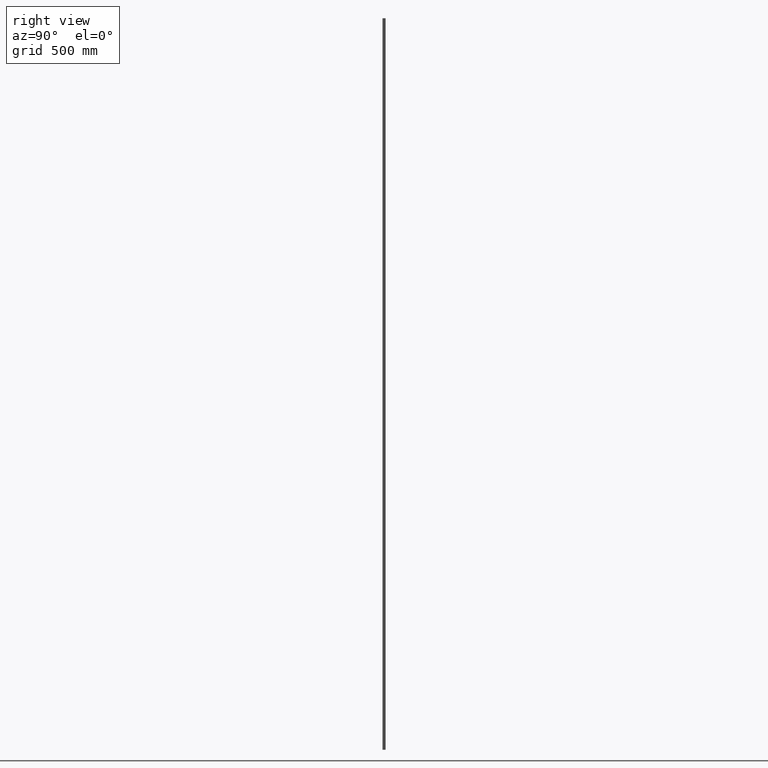
[diagram: clean part render]
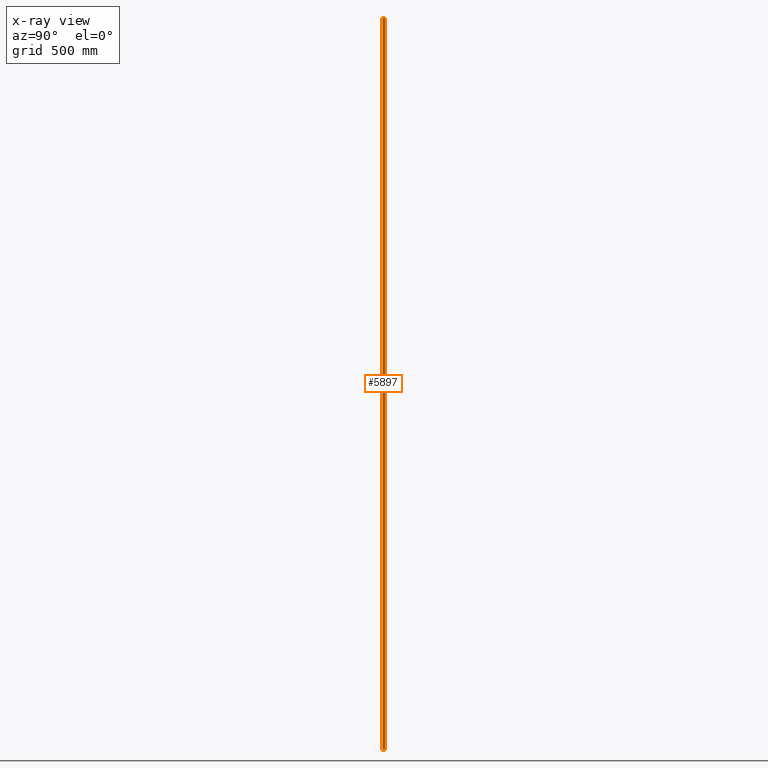
[diagram: x-ray — body ghosted, one internal face saturated and labeled with its STEP entity id]
A machine part, right view, then the same camera in x-ray: the body is ghosted and one INTERNAL B-rep face — a face not visible from any outside direction — is saturated and labeled: STEP entity #5897.
In plain terms, the highlighted planar face has unit normal (1, 0, -0).
Its self-contained STEP definition (entity closure, byte-faithful):
#98 = ORIENTED_EDGE ( 'NONE', *, *, #15833, .T. ) ;
#671 = VERTEX_POINT ( 'NONE', #9397 ) ;
#783 = CARTESIAN_POINT ( 'NONE',  ( 12.00000000000000000, 0.5000000000000027800, 1500.000000000000000 ) ) ;
#1368 = VECTOR ( 'NONE', #3148, 1000.000000000000000 ) ;
#1525 = CARTESIAN_POINT ( 'NONE',  ( 11.99999999999999800, 10.00000000000000200, 1500.000000000000000 ) ) ;
#1983 = LINE ( 'NONE', #14842, #15491 ) ;
#2356 = VERTEX_POINT ( 'NONE', #5492 ) ;
#3148 = DIRECTION ( 'NONE',  ( 1.826024711554533900E-016, -1.000000000000000000, 0.0000000000000000000 ) ) ;
#3506 = CARTESIAN_POINT ( 'NONE',  ( 11.99999999999999800, 10.00000000000000200, 1500.000000000000000 ) ) ;
#3641 = VECTOR ( 'NONE', #4263, 1000.000000000000000 ) ;
#3940 = ORIENTED_EDGE ( 'NONE', *, *, #8784, .F. ) ;
#4263 = DIRECTION ( 'NONE',  ( -0.0000000000000000000, -0.0000000000000000000, -1.000000000000000000 ) ) ;
#4292 = EDGE_LOOP ( 'NONE', ( #3940, #5660, #98, #14307 ) ) ;
#4857 = VERTEX_POINT ( 'NONE', #11166 ) ;
#5398 = LINE ( 'NONE', #7822, #1368 ) ;
#5480 = AXIS2_PLACEMENT_3D ( 'NONE', #8727, #12616, #13674 ) ;
#5492 = CARTESIAN_POINT ( 'NONE',  ( 11.99999999999999800, 10.00000000000000200, -1500.000000000000000 ) ) ;
#5660 = ORIENTED_EDGE ( 'NONE', *, *, #6069, .F. ) ;
#5897 = ADVANCED_FACE ( 'NONE', ( #6292 ), #11327, .T. ) ;
#6069 = EDGE_CURVE ( 'NONE', #4857, #2356, #12691, .T. ) ;
#6292 = FACE_OUTER_BOUND ( 'NONE', #4292, .T. ) ;
#6908 = VERTEX_POINT ( 'NONE', #783 ) ;
#7822 = CARTESIAN_POINT ( 'NONE',  ( 11.99999999999999800, 10.00000000000000200, -1500.000000000000000 ) ) ;
#8438 = DIRECTION ( 'NONE',  ( 1.826024711554533900E-016, -1.000000000000000000, 0.0000000000000000000 ) ) ;
#8727 = CARTESIAN_POINT ( 'NONE',  ( 11.99999999999999800, 10.00000000000000200, 1500.000000000000000 ) ) ;
#8784 = EDGE_CURVE ( 'NONE', #2356, #671, #5398, .T. ) ;
#9172 = EDGE_CURVE ( 'NONE', #6908, #671, #1983, .T. ) ;
#9397 = CARTESIAN_POINT ( 'NONE',  ( 12.00000000000000000, 0.5000000000000027800, -1500.000000000000000 ) ) ;
#11166 = CARTESIAN_POINT ( 'NONE',  ( 11.99999999999999800, 10.00000000000000200, 1500.000000000000000 ) ) ;
#11327 = PLANE ( 'NONE',  #5480 ) ;
#11427 = VECTOR ( 'NONE', #8438, 1000.000000000000000 ) ;
#12616 = DIRECTION ( 'NONE',  ( 1.000000000000000000, 1.826024711554533700E-016, -0.0000000000000000000 ) ) ;
#12691 = LINE ( 'NONE', #1525, #3641 ) ;
#13625 = DIRECTION ( 'NONE',  ( -0.0000000000000000000, -0.0000000000000000000, -1.000000000000000000 ) ) ;
#13674 = DIRECTION ( 'NONE',  ( -1.826024711554533700E-016, 1.000000000000000000, 0.0000000000000000000 ) ) ;
#14307 = ORIENTED_EDGE ( 'NONE', *, *, #9172, .T. ) ;
#14842 = CARTESIAN_POINT ( 'NONE',  ( 12.00000000000000000, 0.5000000000000027800, 1500.000000000000000 ) ) ;
#15491 = VECTOR ( 'NONE', #13625, 1000.000000000000000 ) ;
#15833 = EDGE_CURVE ( 'NONE', #4857, #6908, #15891, .T. ) ;
#15891 = LINE ( 'NONE', #3506, #11427 ) ;